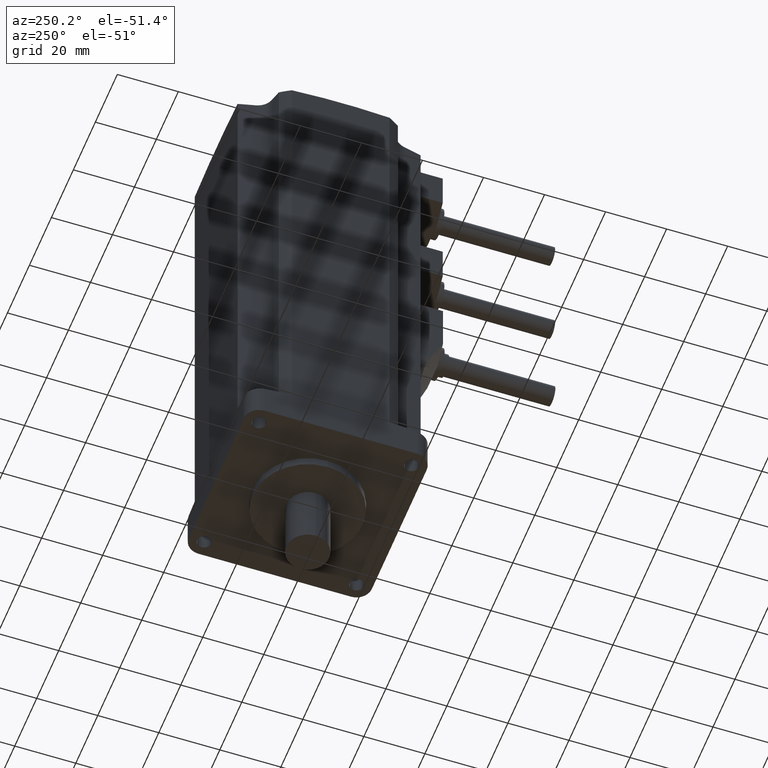
[diagram: clean part render]
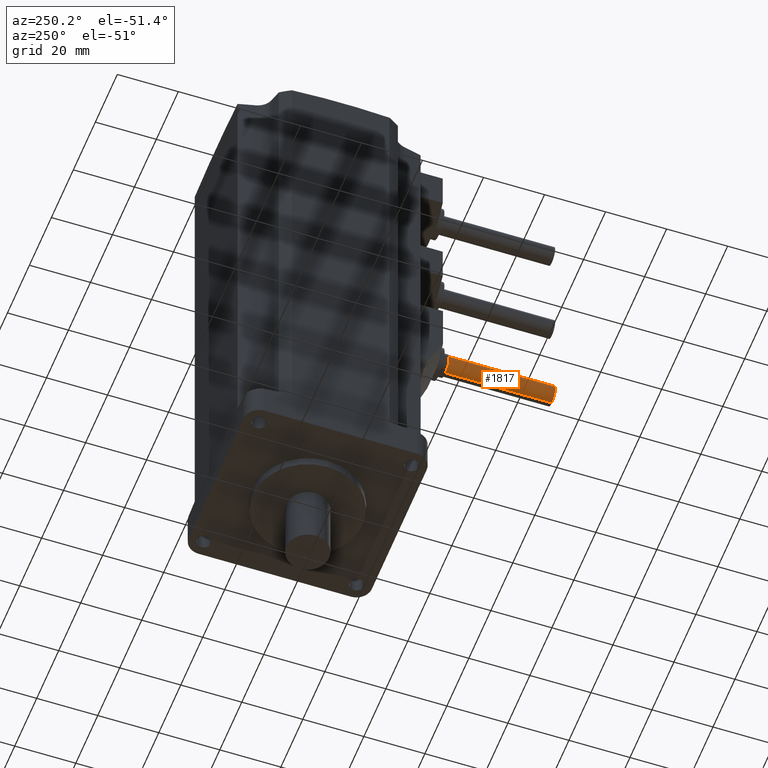
[diagram: same view with one face highlighted and labeled with its STEP entity id]
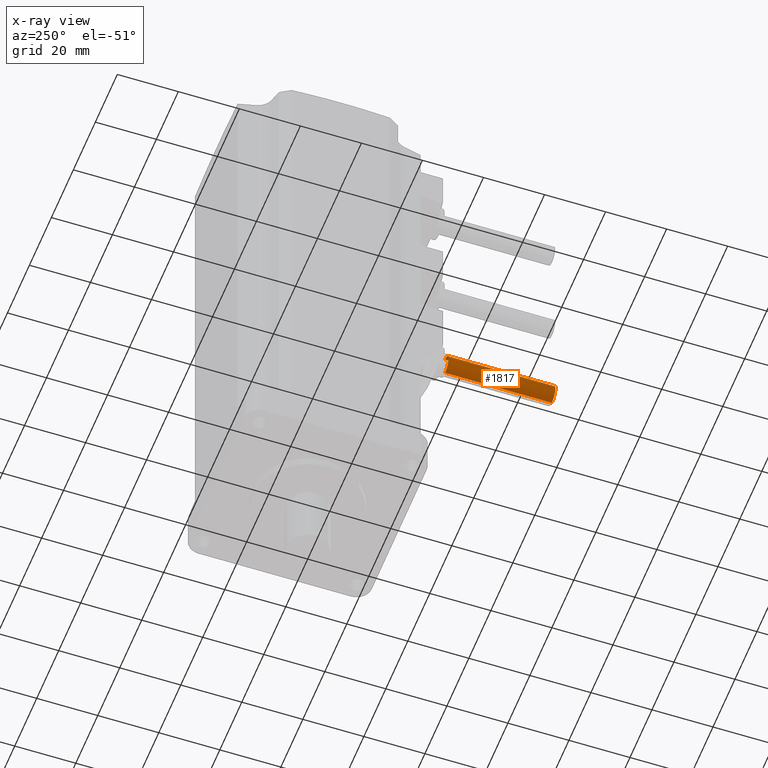
[diagram: x-ray of the same camera — body ghosted, the highlighted face saturated]
A machine part, auxiliary view. The second image highlights one B-rep face of the part: STEP entity #1817.
The next image is the same camera in x-ray: the body ghosted, the highlighted face saturated — about 0% of this face is hidden behind the body in this view.
In plain terms, the highlighted cylindrical surface (edge-blend (fillet) strip) has radius 3.25 mm, axis along (0, -1, -0).
Its self-contained STEP definition (entity closure, byte-faithful):
#133 = CARTESIAN_POINT ( 'NONE',  ( 3.980102097228901683E-16, -45.00000000000000000, 90.25000000000001421 ) ) ;
#196 = ORIENTED_EDGE ( 'NONE', *, *, #2945, .T. ) ;
#409 = CYLINDRICAL_SURFACE ( 'NONE', #3373, 3.250000000000002665 ) ;
#629 = LINE ( 'NONE', #2713, #2213 ) ;
#812 = VERTEX_POINT ( 'NONE', #133 ) ;
#892 = CIRCLE ( 'NONE', #3626, 3.250000000000002665 ) ;
#1178 = DIRECTION ( 'NONE',  ( 0.0000000000000000000, 0.0000000000000000000, -1.000000000000000000 ) ) ;
#1522 = ORIENTED_EDGE ( 'NONE', *, *, #2627, .F. ) ;
#1599 = CARTESIAN_POINT ( 'NONE',  ( 0.0000000000000000000, -80.00000000000000000, 87.00000000000001421 ) ) ;
#1653 = VERTEX_POINT ( 'NONE', #4652 ) ;
#1672 = AXIS2_PLACEMENT_3D ( 'NONE', #1599, #4785, #5155 ) ;
#1784 = ORIENTED_EDGE ( 'NONE', *, *, #3751, .T. ) ;
#1817 = ADVANCED_FACE ( 'NONE', ( #3558 ), #409, .T. ) ;
#1974 = DIRECTION ( 'NONE',  ( -0.0000000000000000000, 1.000000000000000000, -0.0000000000000000000 ) ) ;
#2213 = VECTOR ( 'NONE', #3773, 1000.000000000000000 ) ;
#2289 = DIRECTION ( 'NONE',  ( 0.0000000000000000000, -1.000000000000000000, -1.356135616398806958E-16 ) ) ;
#2313 = DIRECTION ( 'NONE',  ( 0.0000000000000000000, 0.0000000000000000000, -1.000000000000000000 ) ) ;
#2627 = EDGE_CURVE ( 'NONE', #4546, #812, #892, .T. ) ;
#2646 = ORIENTED_EDGE ( 'NONE', *, *, #4600, .F. ) ;
#2713 = CARTESIAN_POINT ( 'NONE',  ( 0.0000000000000000000, -42.99999999999998579, 83.75000000000000000 ) ) ;
#2754 = CARTESIAN_POINT ( 'NONE',  ( 0.0000000000000000000, -42.99999999999998579, 87.00000000000001421 ) ) ;
#2945 = EDGE_CURVE ( 'NONE', #4546, #3675, #629, .T. ) ;
#3279 = DIRECTION ( 'NONE',  ( 0.0000000000000000000, -1.000000000000000000, -1.356135616398806958E-16 ) ) ;
#3373 = AXIS2_PLACEMENT_3D ( 'NONE', #2754, #2289, #2313 ) ;
#3384 = CARTESIAN_POINT ( 'NONE',  ( 3.980102097228901683E-16, -42.99999999999998579, 90.25000000000001421 ) ) ;
#3558 = FACE_OUTER_BOUND ( 'NONE', #4876, .T. ) ;
#3588 = CIRCLE ( 'NONE', #1672, 3.250000000000002665 ) ;
#3626 = AXIS2_PLACEMENT_3D ( 'NONE', #3934, #1974, #1178 ) ;
#3657 = CARTESIAN_POINT ( 'NONE',  ( 0.0000000000000000000, -80.00000000000000000, 83.75000000000000000 ) ) ;
#3675 = VERTEX_POINT ( 'NONE', #3657 ) ;
#3751 = EDGE_CURVE ( 'NONE', #3675, #1653, #3588, .T. ) ;
#3773 = DIRECTION ( 'NONE',  ( 0.0000000000000000000, -1.000000000000000000, -1.356135616398806958E-16 ) ) ;
#3929 = VECTOR ( 'NONE', #3279, 1000.000000000000000 ) ;
#3934 = CARTESIAN_POINT ( 'NONE',  ( 0.0000000000000000000, -45.00000000000000000, 87.00000000000001421 ) ) ;
#4532 = CARTESIAN_POINT ( 'NONE',  ( 0.0000000000000000000, -45.00000000000000000, 83.75000000000000000 ) ) ;
#4546 = VERTEX_POINT ( 'NONE', #4532 ) ;
#4566 = LINE ( 'NONE', #3384, #3929 ) ;
#4600 = EDGE_CURVE ( 'NONE', #812, #1653, #4566, .T. ) ;
#4652 = CARTESIAN_POINT ( 'NONE',  ( 3.980102097228901683E-16, -80.00000000000000000, 90.25000000000001421 ) ) ;
#4785 = DIRECTION ( 'NONE',  ( -0.0000000000000000000, 1.000000000000000000, -0.0000000000000000000 ) ) ;
#4876 = EDGE_LOOP ( 'NONE', ( #2646, #1522, #196, #1784 ) ) ;
#5155 = DIRECTION ( 'NONE',  ( 0.0000000000000000000, 0.0000000000000000000, -1.000000000000000000 ) ) ;